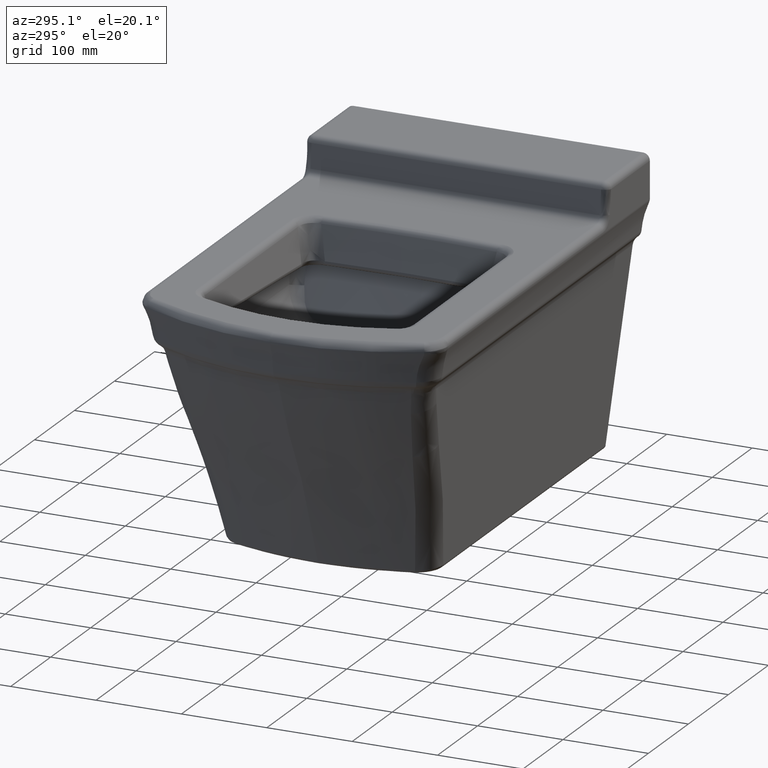
[diagram: clean part render]
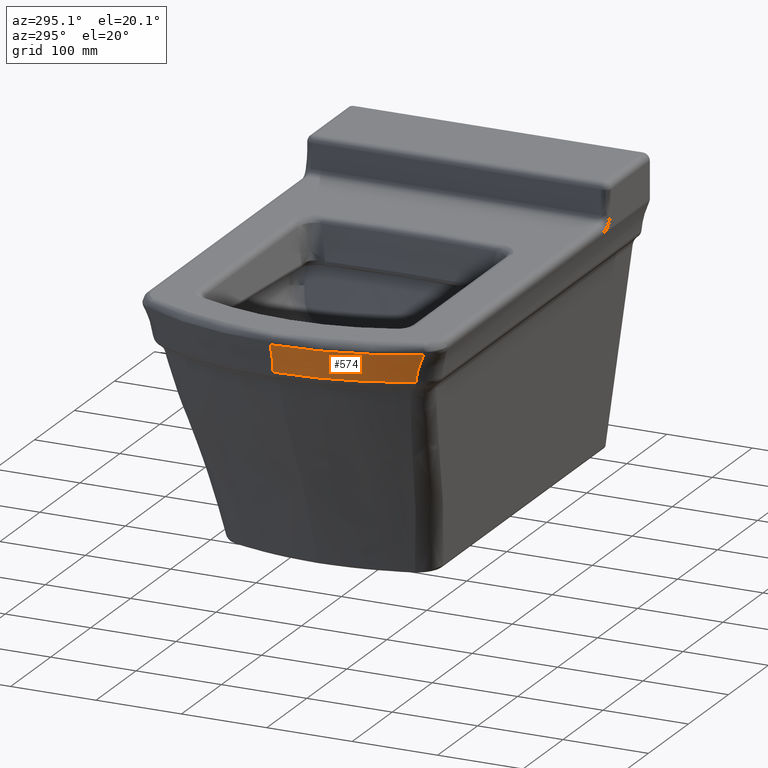
[diagram: same view with one face highlighted and labeled with its STEP entity id]
A machine part, auxiliary view. The second image highlights one B-rep face of the part: STEP entity #574.
In plain terms, the highlighted face is a freeform B-spline surface patch.
Its self-contained STEP definition (entity closure, byte-faithful):
#574=ADVANCED_FACE('',(#829),#681,.F.);
#681=B_SPLINE_SURFACE_WITH_KNOTS('',3,3,((#12370,#12371,#12372,#12373,#12374,
#12375,#12376),(#12377,#12378,#12379,#12380,#12381,#12382,#12383),(#12384,
#12385,#12386,#12387,#12388,#12389,#12390),(#12391,#12392,#12393,#12394,
#12395,#12396,#12397),(#12398,#12399,#12400,#12401,#12402,#12403,#12404),
(#12405,#12406,#12407,#12408,#12409,#12410,#12411),(#12412,#12413,#12414,
#12415,#12416,#12417,#12418),(#12419,#12420,#12421,#12422,#12423,#12424,
#12425),(#12426,#12427,#12428,#12429,#12430,#12431,#12432),(#12433,#12434,
#12435,#12436,#12437,#12438,#12439)),.UNSPECIFIED.,.F.,.F.,.F.,(4,1,1,1,
3,4),(4,1,1,1,4),(0.,0.247524752475248,0.495049504950495,0.742574257425743,
0.99009900990099,1.),(0.,0.00993500493859827,0.483030478205183,0.956125951471767,
1.),.UNSPECIFIED.);
#829=FACE_OUTER_BOUND('',#1038,.T.);
#1038=EDGE_LOOP('',(#1790,#1791,#1792,#1793));
#1790=ORIENTED_EDGE('',*,*,#2785,.F.);
#1791=ORIENTED_EDGE('',*,*,#2777,.F.);
#1792=ORIENTED_EDGE('',*,*,#2602,.F.);
#1793=ORIENTED_EDGE('',*,*,#2810,.F.);
#2247=VERTEX_POINT('',#5452);
#2270=VERTEX_POINT('',#5875);
#2355=VERTEX_POINT('',#11969);
#2361=VERTEX_POINT('',#12069);
#2602=EDGE_CURVE('',#2270,#2247,#3031,.T.);
#2777=EDGE_CURVE('',#2247,#2355,#3156,.T.);
#2785=EDGE_CURVE('',#2355,#2361,#3162,.T.);
#2810=EDGE_CURVE('',#2361,#2270,#3177,.T.);
#3031=B_SPLINE_CURVE_WITH_KNOTS('',3,(#5876,#5877,#5878,#5879,#5880),
 .UNSPECIFIED.,.F.,.F.,(4,1,4),(0.,0.449433361193808,1.),.UNSPECIFIED.);
#3156=B_SPLINE_CURVE_WITH_KNOTS('',3,(#11961,#11962,#11963,#11964,#11965,
#11966,#11967,#11968),.UNSPECIFIED.,.F.,.F.,(4,2,2,4),(0.,0.5,0.75,1.),
 .UNSPECIFIED.);
#3162=B_SPLINE_CURVE_WITH_KNOTS('',3,(#12063,#12064,#12065,#12066,#12067,
#12068),.UNSPECIFIED.,.F.,.F.,(4,2,4),(0.,0.5,1.),.UNSPECIFIED.);
#3177=B_SPLINE_CURVE_WITH_KNOTS('',3,(#12360,#12361,#12362,#12363,#12364,
#12365,#12366,#12367,#12368,#12369),.UNSPECIFIED.,.F.,.F.,(4,2,2,2,4),(0.,
0.25,0.5,0.75,1.),.UNSPECIFIED.);
#5452=CARTESIAN_POINT('',(-478.627229257572,5.43088797862958E-10,-14.4742665334106));
#5875=CARTESIAN_POINT('',(-470.634856198209,-1.73990780344255E-13,-48.2037078858475));
#5876=CARTESIAN_POINT('',(-470.634856198209,2.18626264401695E-10,-48.2037078858475));
#5877=CARTESIAN_POINT('',(-471.006004364995,2.20763678945775E-10,-43.0169274175414));
#5878=CARTESIAN_POINT('',(-472.6702990191,2.25371434145348E-10,-31.4750715320771));
#5879=CARTESIAN_POINT('',(-476.188293152934,2.30011571491482E-10,-20.3407846175236));
#5880=CARTESIAN_POINT('',(-478.627229257572,2.32711463725825E-10,-14.4742665334107));
#11961=CARTESIAN_POINT('',(-478.627229257572,4.23797579572984E-14,-14.4742665334111));
#11962=CARTESIAN_POINT('',(-478.6278125364,-28.0539919327078,-14.4758442695248));
#11963=CARTESIAN_POINT('',(-475.099880888902,-56.0801883687006,-14.5053934741032));
#11964=CARTESIAN_POINT('',(-464.803858050848,-96.8133706463668,-14.4761696334624));
#11965=CARTESIAN_POINT('',(-460.536251441052,-110.183496102857,-14.4495605859785));
#11966=CARTESIAN_POINT('',(-450.363098300401,-136.305485037655,-14.4123219478201));
#11967=CARTESIAN_POINT('',(-444.475690787031,-149.005143692661,-14.4087873254566));
#11968=CARTESIAN_POINT('',(-437.794173840339,-161.346483043409,-14.4016446875957));
#11969=CARTESIAN_POINT('',(-437.794173840339,-161.346483043409,-14.4016446875958));
#12063=CARTESIAN_POINT('',(-437.794173840339,-161.346483043408,-14.4016446875957));
#12064=CARTESIAN_POINT('',(-437.016230910273,-158.465633194411,-19.6733346877282));
#12065=CARTESIAN_POINT('',(-436.28630591609,-156.065144644957,-25.160224076322));
#12066=CARTESIAN_POINT('',(-435.118046395957,-152.30770110865,-36.625236629796));
#12067=CARTESIAN_POINT('',(-434.68514925181,-150.984665024699,-42.5583197099956));
#12068=CARTESIAN_POINT('',(-434.480879197303,-150.281984154964,-48.5710251697194));
#12069=CARTESIAN_POINT('',(-434.480879197303,-150.281984154964,-48.5710251697194));
#12360=CARTESIAN_POINT('',(-434.480879197303,-150.281984154964,-48.5710251697194));
#12361=CARTESIAN_POINT('',(-440.403152640387,-138.678084195008,-48.5137078449208));
#12362=CARTESIAN_POINT('',(-445.615312457446,-126.778041753567,-48.4643854340662));
#12363=CARTESIAN_POINT('',(-454.626025404609,-102.388447104941,-48.3781104883994));
#12364=CARTESIAN_POINT('',(-458.419441540277,-89.9052013117701,-48.3400861914133));
#12365=CARTESIAN_POINT('',(-464.493035556005,-64.6458117223607,-48.2773569875413));
#12366=CARTESIAN_POINT('',(-466.794707472258,-51.7947265336785,-48.2510620814678));
#12367=CARTESIAN_POINT('',(-469.857696333108,-25.9919956750885,-48.2157488213766));
#12368=CARTESIAN_POINT('',(-470.630377183208,-13.0278015662555,-48.2053420932987));
#12369=CARTESIAN_POINT('',(-470.634856198209,1.73980830879352E-13,-48.2037078858477));
#12370=CARTESIAN_POINT('',(-479.270531671951,3.40916878687822E-14,-12.9598043346951));
#12371=CARTESIAN_POINT('',(-479.214114208832,3.48306539008624E-14,-13.089857018619));
#12372=CARTESIAN_POINT('',(-476.482783472812,7.04555666322291E-14,-19.4192600091979));
#12373=CARTESIAN_POINT('',(-472.240232549773,1.10663925114595E-13,-32.5847866334469));
#12374=CARTESIAN_POINT('',(-470.509803961549,1.66244721414443E-13,-46.8030883412678));
#12375=CARTESIAN_POINT('',(-470.372275008857,2.00975649780984E-13,-54.1752271121385));
#12376=CARTESIAN_POINT('',(-470.365113622417,2.0395680096133E-13,-54.8005775947073));
#12377=CARTESIAN_POINT('',(-479.271738969871,-15.5827052489379,-12.9598043346951));
#12378=CARTESIAN_POINT('',(-479.2152742548,-15.5785891295902,-13.089857018619));
#12379=CARTESIAN_POINT('',(-476.481674849018,-15.3787274128568,-19.4192600091979));
#12380=CARTESIAN_POINT('',(-472.237502425467,-15.009138388218,-32.5847866334469));
#12381=CARTESIAN_POINT('',(-470.505599473369,-14.6286049383189,-46.8030883412677));
#12382=CARTESIAN_POINT('',(-470.365891599705,-14.417508140513,-54.1752271121384));
#12383=CARTESIAN_POINT('',(-470.358536996454,-14.3995198238787,-54.8005775947073));
#12384=CARTESIAN_POINT('',(-477.106538403105,-46.7325606468841,-12.9598043346951));
#12385=CARTESIAN_POINT('',(-477.051028870331,-46.7214393433081,-13.089857018619));
#12386=CARTESIAN_POINT('',(-474.363747138021,-46.1811449544058,-19.4192600091979));
#12387=CARTESIAN_POINT('',(-470.1990122991,-45.1529728093823,-32.5847866334469));
#12388=CARTESIAN_POINT('',(-468.548324875963,-44.0917372389497,-46.8030883412678));
#12389=CARTESIAN_POINT('',(-468.456835982075,-43.5179047036462,-54.1752271121385));
#12390=CARTESIAN_POINT('',(-468.453607835454,-43.4690888193402,-54.8005775947073));
#12391=CARTESIAN_POINT('',(-467.506307220363,-92.5749589547043,-12.9598043346951));
#12392=CARTESIAN_POINT('',(-467.454010108601,-92.5555291734347,-13.089857018619));
#12393=CARTESIAN_POINT('',(-464.922592839227,-91.6109113884806,-19.4192600091979));
#12394=CARTESIAN_POINT('',(-461.034323823865,-89.745074662121,-32.5847866334469));
#12395=CARTESIAN_POINT('',(-459.66729132114,-87.8132834176544,-46.8030883412678));
#12396=CARTESIAN_POINT('',(-459.739253352291,-86.8026264904829,-54.1752271121385));
#12397=CARTESIAN_POINT('',(-459.749987233995,-86.7168427640777,-54.8005775947073));
#12398=CARTESIAN_POINT('',(-451.705287070688,-136.679841056004,-12.9598043346951));
#12399=CARTESIAN_POINT('',(-451.658011256004,-136.652804123319,-13.089857018619));
#12400=CARTESIAN_POINT('',(-449.370247673579,-135.337864326789,-19.4192600091979));
#12401=CARTESIAN_POINT('',(-445.916547458606,-132.692017741351,-32.5847866334469));
#12402=CARTESIAN_POINT('',(-444.995590643023,-129.948546343137,-46.8030883412678));
#12403=CARTESIAN_POINT('',(-445.323296573394,-128.536380919388,-54.1752271121385));
#12404=CARTESIAN_POINT('',(-445.355869246875,-128.41665346165,-54.8005775947073));
#12405=CARTESIAN_POINT('',(-437.2172033858,-164.334962345493,-12.9598043346951));
#12406=CARTESIAN_POINT('',(-437.175073087532,-164.302663574117,-13.089857018619));
#12407=CARTESIAN_POINT('',(-435.136866374443,-162.731756188674,-19.4192600091979));
#12408=CARTESIAN_POINT('',(-432.115787666877,-159.565030661901,-32.5847866334469));
#12409=CARTESIAN_POINT('',(-431.637709314828,-156.280924048937,-46.8030883412678));
#12410=CARTESIAN_POINT('',(-432.225934566894,-154.593135928705,-54.1752271121385));
#12411=CARTESIAN_POINT('',(-432.280789259211,-154.45005628422,-54.8005775947073));
#12412=CARTESIAN_POINT('',(-429.055199805272,-177.605379837191,-12.9598043346951));
#12413=CARTESIAN_POINT('',(-429.016318049998,-177.570249522427,-13.089857018619));
#12414=CARTESIAN_POINT('',(-427.135599063187,-175.861700544076,-19.4192600091979));
#12415=CARTESIAN_POINT('',(-424.380896322265,-172.425059309513,-32.5847866334469));
#12416=CARTESIAN_POINT('',(-424.174862088456,-168.861607143869,-46.8030883412678));
#12417=CARTESIAN_POINT('',(-424.926752214646,-167.026675345227,-54.1752271121385));
#12418=CARTESIAN_POINT('',(-424.995624049555,-166.871100400522,-54.8005775947073));
#12419=CARTESIAN_POINT('',(-428.728719662051,-178.136196536859,-12.9598043346951));
#12420=CARTESIAN_POINT('',(-428.689967848497,-178.10095296036,-13.089857018619));
#12421=CARTESIAN_POINT('',(-426.815548370737,-176.386898318292,-19.4192600091979));
#12422=CARTESIAN_POINT('',(-424.071500668481,-172.939460455418,-32.5847866334469));
#12423=CARTESIAN_POINT('',(-423.876348199401,-169.364834467666,-46.8030883412678));
#12424=CARTESIAN_POINT('',(-424.634784920556,-167.524016921888,-54.1752271121385));
#12425=CARTESIAN_POINT('',(-424.704217441168,-167.367942165174,-54.8005775947073));
#12426=CARTESIAN_POINT('',(-428.40223951883,-178.667013236527,-12.9598043346951));
#12427=CARTESIAN_POINT('',(-428.363617646996,-178.631656398292,-13.089857018619));
#12428=CARTESIAN_POINT('',(-426.495497678286,-176.912096092508,-19.4192600091979));
#12429=CARTESIAN_POINT('',(-423.762105014696,-173.453861601322,-32.5847866334469));
#12430=CARTESIAN_POINT('',(-423.577834310346,-169.868061791463,-46.8030883412678));
#12431=CARTESIAN_POINT('',(-424.342817626466,-168.021358498549,-54.1752271121385));
#12432=CARTESIAN_POINT('',(-424.412810832782,-167.864783929826,-54.8005775947073));
#12433=CARTESIAN_POINT('',(-428.075759375609,-179.197829936195,-12.9598043346951));
#12434=CARTESIAN_POINT('',(-428.037267445494,-179.162359836225,-13.089857018619));
#12435=CARTESIAN_POINT('',(-426.175446985836,-177.437293866724,-19.4192600091979));
#12436=CARTESIAN_POINT('',(-423.452709360911,-173.968262747227,-32.5847866334469));
#12437=CARTESIAN_POINT('',(-423.279320421291,-170.371289115261,-46.8030883412678));
#12438=CARTESIAN_POINT('',(-424.050850332376,-168.51870007521,-54.1752271121385));
#12439=CARTESIAN_POINT('',(-424.121404224396,-168.361625694478,-54.8005775947073));